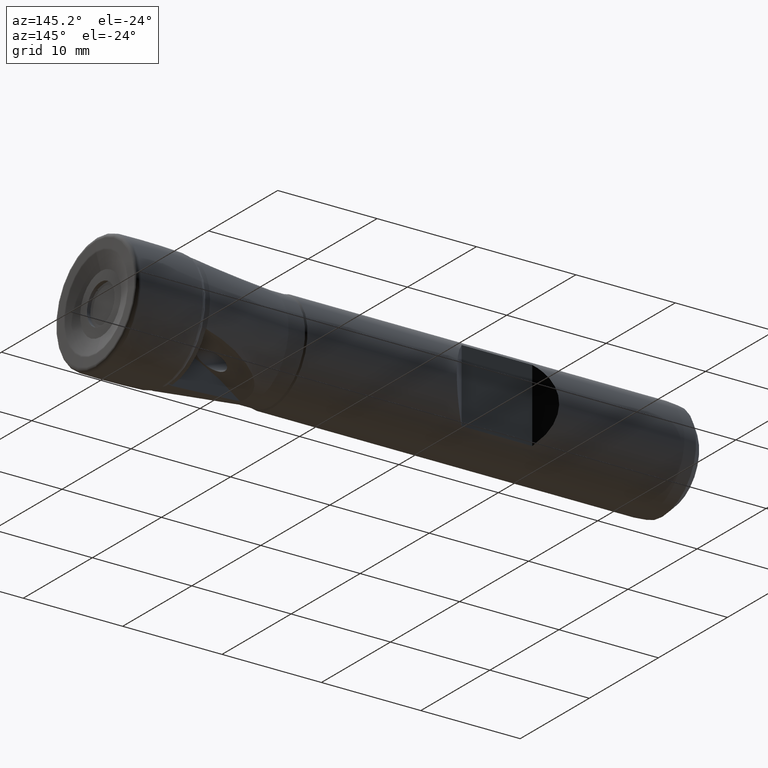
[diagram: clean part render]
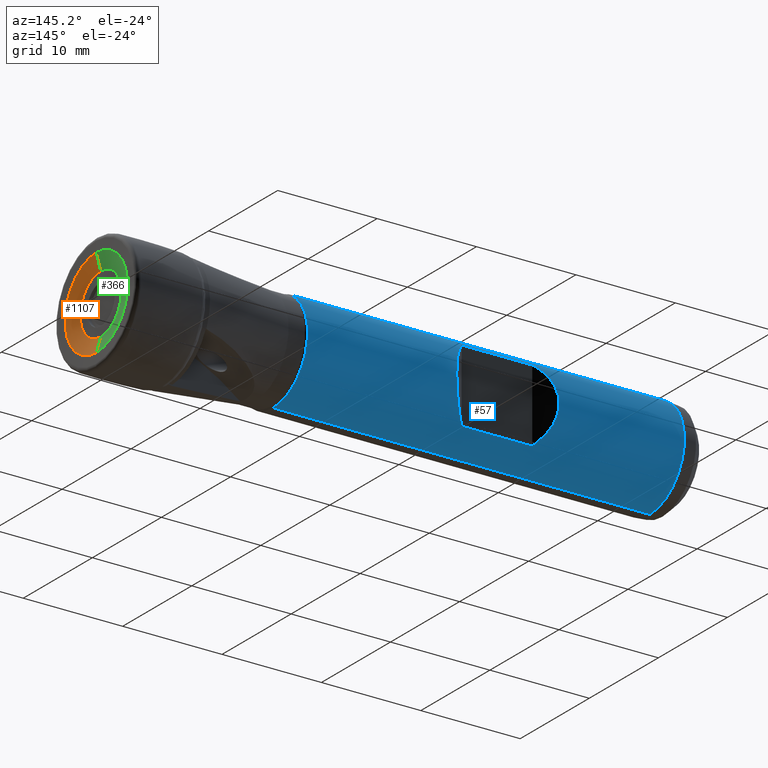
[diagram: same view with three faces highlighted in distinct colors, each labeled with its STEP entity id]
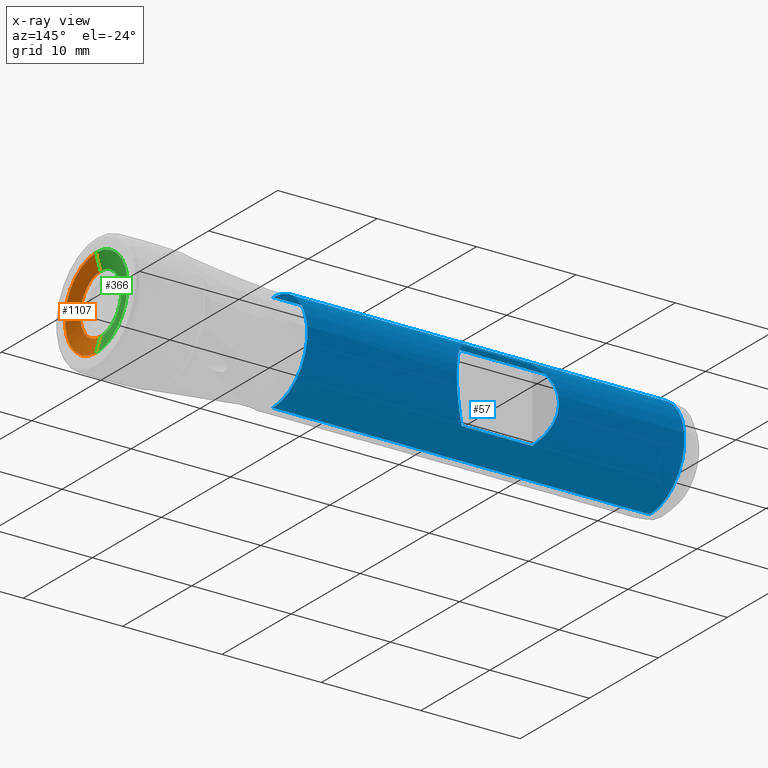
[diagram: x-ray of the same camera — body ghosted, the three highlighted faces saturated]
A machine part, auxiliary view with three faces highlighted in distinct colors.
The next image is the same camera in x-ray (body ghosted, the three faces saturated) — at least one of them is partly hidden behind the body in this view.
Their STEP definitions:

[orange] entity #1107 — the highlighted conical surface has half-angle 73.85 deg.
#157 = CARTESIAN_POINT ( 'NONE',  ( 0.4509237223386982600, 5.627732457500730900E-016, 4.529457081011830900 ) ) ;
#174 = CARTESIAN_POINT ( 'NONE',  ( 0.4509237223386982600, 0.0000000000000000000, -4.529457081011830900 ) ) ;
#389 = CIRCLE ( 'NONE', #421, 4.529457081011830900 ) ;
#413 = VECTOR ( 'NONE', #2830, 1000.000000000000200 ) ;
#418 = VECTOR ( 'NONE', #2834, 1000.000000000000200 ) ;
#421 = AXIS2_PLACEMENT_3D ( 'NONE', #2831, #2832, #2833 ) ;
#1107 = ADVANCED_FACE ( 'NONE', ( #2179 ), #1484, .F. ) ;
#1202 = EDGE_CURVE ( 'NONE', #2457, #2458, #2827, .T. ) ;
#1203 = EDGE_CURVE ( 'NONE', #2458, #2477, #389, .T. ) ;
#1204 = EDGE_CURVE ( 'NONE', #2436, #2477, #2828, .T. ) ;
#1228 = EDGE_CURVE ( 'NONE', #2457, #2436, #1792, .T. ) ;
#1247 = ORIENTED_EDGE ( 'NONE', *, *, #1228, .F. ) ;
#1306 = ORIENTED_EDGE ( 'NONE', *, *, #1204, .F. ) ;
#1307 = ORIENTED_EDGE ( 'NONE', *, *, #1203, .T. ) ;
#1314 = ORIENTED_EDGE ( 'NONE', *, *, #1202, .T. ) ;
#1438 = AXIS2_PLACEMENT_3D ( 'NONE', #2184, #2185, #2182 ) ;
#1484 = CONICAL_SURFACE ( 'NONE', #1438, 4.529457081011830900, 1.288927928314261000 ) ;
#1615 = EDGE_LOOP ( 'NONE', ( #1247, #1314, #1307, #1306 ) ) ;
#1645 = AXIS2_PLACEMENT_3D ( 'NONE', #2919, #2920, #2921 ) ;
#1792 = CIRCLE ( 'NONE', #1645, 2.972283386832371900 ) ;
#2179 = FACE_OUTER_BOUND ( 'NONE', #1615, .T. ) ;
#2182 = DIRECTION ( 'NONE',  ( 0.0000000000000000000, 0.0000000000000000000, -1.000000000000000000 ) ) ;
#2184 = CARTESIAN_POINT ( 'NONE',  ( 0.4509237223386982600, 0.0000000000000000000, 0.0000000000000000000 ) ) ;
#2185 = DIRECTION ( 'NONE',  ( 1.000000000000000000, -0.0000000000000000000, -0.0000000000000000000 ) ) ;
#2436 = VERTEX_POINT ( 'NONE', #3069 ) ;
#2457 = VERTEX_POINT ( 'NONE', #3078 ) ;
#2458 = VERTEX_POINT ( 'NONE', #157 ) ;
#2477 = VERTEX_POINT ( 'NONE', #174 ) ;
#2811 = CARTESIAN_POINT ( 'NONE',  ( 0.4509237223386982600, 0.0000000000000000000, -4.529457081011830900 ) ) ;
#2827 = LINE ( 'NONE', #2829, #413 ) ;
#2828 = LINE ( 'NONE', #2811, #418 ) ;
#2829 = CARTESIAN_POINT ( 'NONE',  ( 0.4509237223386982600, 5.546985116136451500E-016, 4.529457081011830900 ) ) ;
#2830 = DIRECTION ( 'NONE',  ( 0.2781507996735198600, 1.176319075220020500E-016, 0.9605374186573791800 ) ) ;
#2831 = CARTESIAN_POINT ( 'NONE',  ( 0.4509237223386982600, 0.0000000000000000000, 0.0000000000000000000 ) ) ;
#2832 = DIRECTION ( 'NONE',  ( 1.000000000000000000, -0.0000000000000000000, -0.0000000000000000000 ) ) ;
#2833 = DIRECTION ( 'NONE',  ( 0.0000000000000000000, 0.0000000000000000000, -1.000000000000000000 ) ) ;
#2834 = DIRECTION ( 'NONE',  ( 0.2781507996735198600, 0.0000000000000000000, -0.9605374186573791800 ) ) ;
#2919 = CARTESIAN_POINT ( 'NONE',  ( 4.607859233063393800E-015, 0.0000000000000000000, 0.0000000000000000000 ) ) ;
#2920 = DIRECTION ( 'NONE',  ( 1.000000000000000000, -0.0000000000000000000, -0.0000000000000000000 ) ) ;
#2921 = DIRECTION ( 'NONE',  ( 0.0000000000000000000, 0.0000000000000000000, -1.000000000000000000 ) ) ;
#3069 = CARTESIAN_POINT ( 'NONE',  ( 4.607859233063393800E-015, 0.0000000000000000000, -2.972283386832371900 ) ) ;
#3078 = CARTESIAN_POINT ( 'NONE',  ( 4.607859233063393800E-015, 4.593491225989785000E-016, 2.972283386832371900 ) ) ;

[blue] entity #57 — the highlighted cylindrical surface (partial cylindrical patch) has radius 5 mm, axis along (1, -0, -0).
#26 = VECTOR ( 'NONE', #2952, 1000.000000000000000 ) ;
#39 = VECTOR ( 'NONE', #2959, 1000.000000000000000 ) ;
#48 = AXIS2_PLACEMENT_3D ( 'NONE', #648, #651, #656 ) ;
#57 = ADVANCED_FACE ( 'NONE', ( #650, #645 ), #655, .T. ) ;
#123 = AXIS2_PLACEMENT_3D ( 'NONE', #2955, #2956, #2957 ) ;
#156 = CARTESIAN_POINT ( 'NONE',  ( -33.95000000000001000, 3.400000000000003000, -3.666060555964658600 ) ) ;
#427 = VECTOR ( 'NONE', #2945, 1000.000000000000000 ) ;
#645 = FACE_OUTER_BOUND ( 'NONE', #1241, .T. ) ;
#648 = CARTESIAN_POINT ( 'NONE',  ( 0.0000000000000000000, 0.0000000000000000000, 0.0000000000000000000 ) ) ;
#650 = FACE_BOUND ( 'NONE', #1611, .T. ) ;
#651 = DIRECTION ( 'NONE',  ( 1.000000000000000000, -0.0000000000000000000, -0.0000000000000000000 ) ) ;
#655 = CYLINDRICAL_SURFACE ( 'NONE', #48, 4.999999999999994700 ) ;
#656 = DIRECTION ( 'NONE',  ( 0.0000000000000000000, 0.0000000000000000000, -1.000000000000000000 ) ) ;
#1232 = EDGE_CURVE ( 'NONE', #2344, #2456, #1718, .T. ) ;
#1233 = EDGE_CURVE ( 'NONE', #2346, #2344, #2934, .T. ) ;
#1234 = EDGE_CURVE ( 'NONE', #2328, #2346, #1719, .T. ) ;
#1235 = EDGE_CURVE ( 'NONE', #2456, #2328, #2943, .T. ) ;
#1236 = EDGE_CURVE ( 'NONE', #2347, #2432, #1793, .T. ) ;
#1237 = EDGE_CURVE ( 'NONE', #2432, #2434, #2948, .T. ) ;
#1238 = EDGE_CURVE ( 'NONE', #2434, #2430, #1660, .T. ) ;
#1239 = EDGE_CURVE ( 'NONE', #2347, #2430, #2947, .T. ) ;
#1241 = EDGE_LOOP ( 'NONE', ( #1299, #1300, #1290, #1291 ) ) ;
#1250 = ORIENTED_EDGE ( 'NONE', *, *, #1234, .F. ) ;
#1254 = ORIENTED_EDGE ( 'NONE', *, *, #1232, .F. ) ;
#1255 = ORIENTED_EDGE ( 'NONE', *, *, #1233, .F. ) ;
#1290 = ORIENTED_EDGE ( 'NONE', *, *, #1238, .T. ) ;
#1291 = ORIENTED_EDGE ( 'NONE', *, *, #1239, .F. ) ;
#1299 = ORIENTED_EDGE ( 'NONE', *, *, #1236, .T. ) ;
#1300 = ORIENTED_EDGE ( 'NONE', *, *, #1237, .T. ) ;
#1301 = ORIENTED_EDGE ( 'NONE', *, *, #1235, .F. ) ;
#1401 = VECTOR ( 'NONE', #2939, 1000.000000000000000 ) ;
#1611 = EDGE_LOOP ( 'NONE', ( #1254, #1255, #1250, #1301 ) ) ;
#1655 = AXIS2_PLACEMENT_3D ( 'NONE', #2949, #2950, #2951 ) ;
#1660 = CIRCLE ( 'NONE', #123, 4.999999999999994700 ) ;
#1718 =( BOUNDED_CURVE ( )  B_SPLINE_CURVE ( 3, ( #2922, #2930, #2935, #2936 ),
 .UNSPECIFIED., .F., .T. ) 
 B_SPLINE_CURVE_WITH_KNOTS ( ( 4, 4 ),
 ( 5.460151615044611400, 7.106218999314560100 ),
 .UNSPECIFIED. ) 
 CURVE ( )  GEOMETRIC_REPRESENTATION_ITEM ( )  RATIONAL_B_SPLINE_CURVE ( ( 1.000000000000000000, 0.7866666666666675100, 0.7866666666666675100, 1.000000000000000000 ) ) 
 REPRESENTATION_ITEM ( '' )  );
#1719 =( BOUNDED_CURVE ( )  B_SPLINE_CURVE ( 3, ( #2938, #2933, #2941, #2942 ),
 .UNSPECIFIED., .F., .T. ) 
 B_SPLINE_CURVE_WITH_KNOTS ( ( 4, 4 ),
 ( 2.318558961454819700, 3.964626345724767900 ),
 .UNSPECIFIED. ) 
 CURVE ( )  GEOMETRIC_REPRESENTATION_ITEM ( )  RATIONAL_B_SPLINE_CURVE ( ( 1.000000000000000000, 0.7866666666666676200, 0.7866666666666676200, 1.000000000000000000 ) ) 
 REPRESENTATION_ITEM ( '' )  );
#1793 = CIRCLE ( 'NONE', #1655, 4.999999999999994700 ) ;
#2328 = VERTEX_POINT ( 'NONE', #2969 ) ;
#2344 = VERTEX_POINT ( 'NONE', #2977 ) ;
#2346 = VERTEX_POINT ( 'NONE', #2984 ) ;
#2347 = VERTEX_POINT ( 'NONE', #2978 ) ;
#2430 = VERTEX_POINT ( 'NONE', #3063 ) ;
#2432 = VERTEX_POINT ( 'NONE', #3065 ) ;
#2434 = VERTEX_POINT ( 'NONE', #3067 ) ;
#2456 = VERTEX_POINT ( 'NONE', #156 ) ;
#2922 = CARTESIAN_POINT ( 'NONE',  ( -33.95000000000001000, 3.400000000000003000, 3.666060555964665300 ) ) ;
#2930 = CARTESIAN_POINT ( 'NONE',  ( -31.67203389830511300, 5.677966101694906300, 1.553415489815537700 ) ) ;
#2933 = CARTESIAN_POINT ( 'NONE',  ( -43.32796610169489800, 5.677966101694905500, -1.553415489815529900 ) ) ;
#2934 = LINE ( 'NONE', #2937, #1401 ) ;
#2935 = CARTESIAN_POINT ( 'NONE',  ( -31.67203389830510600, 5.677966101694906300, -1.553415489815531700 ) ) ;
#2936 = CARTESIAN_POINT ( 'NONE',  ( -33.95000000000001000, 3.400000000000003000, -3.666060555964658600 ) ) ;
#2937 = CARTESIAN_POINT ( 'NONE',  ( 4.153563252338835300E-016, 3.399999999999998600, 3.666060555964666600 ) ) ;
#2938 = CARTESIAN_POINT ( 'NONE',  ( -41.05000000000000400, 3.400000000000003900, -3.666060555964661700 ) ) ;
#2939 = DIRECTION ( 'NONE',  ( 1.000000000000000000, -0.0000000000000000000, -0.0000000000000000000 ) ) ;
#2940 = CARTESIAN_POINT ( 'NONE',  ( 0.0000000000000000000, 6.123233995736760400E-016, 4.999999999999994700 ) ) ;
#2941 = CARTESIAN_POINT ( 'NONE',  ( -43.32796610169489800, 5.677966101694905500, 1.553415489815536100 ) ) ;
#2942 = CARTESIAN_POINT ( 'NONE',  ( -41.05000000000000400, 3.399999999999998600, 3.666060555964666600 ) ) ;
#2943 = LINE ( 'NONE', #2944, #427 ) ;
#2944 = CARTESIAN_POINT ( 'NONE',  ( 4.153563252338835300E-016, 3.399999999999998600, -3.666060555964666600 ) ) ;
#2945 = DIRECTION ( 'NONE',  ( -1.000000000000000000, 0.0000000000000000000, 0.0000000000000000000 ) ) ;
#2946 = CARTESIAN_POINT ( 'NONE',  ( 0.0000000000000000000, 0.0000000000000000000, -4.999999999999994700 ) ) ;
#2947 = LINE ( 'NONE', #2946, #39 ) ;
#2948 = LINE ( 'NONE', #2940, #26 ) ;
#2949 = CARTESIAN_POINT ( 'NONE',  ( -55.24999999999996400, 0.0000000000000000000, 0.0000000000000000000 ) ) ;
#2950 = DIRECTION ( 'NONE',  ( 1.000000000000000000, -0.0000000000000000000, -0.0000000000000000000 ) ) ;
#2951 = DIRECTION ( 'NONE',  ( 0.0000000000000000000, 0.0000000000000000000, -1.000000000000000000 ) ) ;
#2952 = DIRECTION ( 'NONE',  ( 1.000000000000000000, -0.0000000000000000000, -0.0000000000000000000 ) ) ;
#2955 = CARTESIAN_POINT ( 'NONE',  ( -17.32679491924311000, 0.0000000000000000000, 0.0000000000000000000 ) ) ;
#2956 = DIRECTION ( 'NONE',  ( -1.000000000000000000, 0.0000000000000000000, 0.0000000000000000000 ) ) ;
#2957 = DIRECTION ( 'NONE',  ( 0.0000000000000000000, 0.0000000000000000000, 1.000000000000000000 ) ) ;
#2959 = DIRECTION ( 'NONE',  ( 1.000000000000000000, -0.0000000000000000000, -0.0000000000000000000 ) ) ;
#2969 = CARTESIAN_POINT ( 'NONE',  ( -41.05000000000000400, 3.400000000000003900, -3.666060555964661700 ) ) ;
#2977 = CARTESIAN_POINT ( 'NONE',  ( -33.95000000000001000, 3.400000000000003000, 3.666060555964665300 ) ) ;
#2978 = CARTESIAN_POINT ( 'NONE',  ( -55.24999999999996400, 0.0000000000000000000, -4.999999999999994700 ) ) ;
#2984 = CARTESIAN_POINT ( 'NONE',  ( -41.05000000000000400, 3.399999999999998600, 3.666060555964666600 ) ) ;
#3063 = CARTESIAN_POINT ( 'NONE',  ( -17.32679491924311000, 6.123233995736760400E-016, -4.999999999999994700 ) ) ;
#3065 = CARTESIAN_POINT ( 'NONE',  ( -55.24999999999996400, 6.123233995736760400E-016, 4.999999999999994700 ) ) ;
#3067 = CARTESIAN_POINT ( 'NONE',  ( -17.32679491924311000, 0.0000000000000000000, 4.999999999999994700 ) ) ;

[green] entity #366 — the highlighted conical surface has half-angle 73.85 deg.
#157 = CARTESIAN_POINT ( 'NONE',  ( 0.4509237223386982600, 5.627732457500730900E-016, 4.529457081011830900 ) ) ;
#174 = CARTESIAN_POINT ( 'NONE',  ( 0.4509237223386982600, 0.0000000000000000000, -4.529457081011830900 ) ) ;
#366 = ADVANCED_FACE ( 'NONE', ( #907 ), #1426, .F. ) ;
#413 = VECTOR ( 'NONE', #2830, 1000.000000000000200 ) ;
#418 = VECTOR ( 'NONE', #2834, 1000.000000000000200 ) ;
#450 = EDGE_CURVE ( 'NONE', #2436, #2457, #1515, .T. ) ;
#463 = EDGE_LOOP ( 'NONE', ( #1605, #1604, #1556, #1549 ) ) ;
#907 = FACE_OUTER_BOUND ( 'NONE', #463, .T. ) ;
#910 = DIRECTION ( 'NONE',  ( 0.0000000000000000000, 0.0000000000000000000, -1.000000000000000000 ) ) ;
#912 = CARTESIAN_POINT ( 'NONE',  ( 0.4509237223386982600, 0.0000000000000000000, 0.0000000000000000000 ) ) ;
#913 = DIRECTION ( 'NONE',  ( 1.000000000000000000, -0.0000000000000000000, -0.0000000000000000000 ) ) ;
#1202 = EDGE_CURVE ( 'NONE', #2457, #2458, #2827, .T. ) ;
#1204 = EDGE_CURVE ( 'NONE', #2436, #2477, #2828, .T. ) ;
#1207 = EDGE_CURVE ( 'NONE', #2477, #2458, #1653, .T. ) ;
#1324 = AXIS2_PLACEMENT_3D ( 'NONE', #1811, #1812, #1813 ) ;
#1387 = AXIS2_PLACEMENT_3D ( 'NONE', #912, #913, #910 ) ;
#1426 = CONICAL_SURFACE ( 'NONE', #1387, 4.529457081011830900, 1.288927928314261000 ) ;
#1515 = CIRCLE ( 'NONE', #1324, 2.972283386832371900 ) ;
#1549 = ORIENTED_EDGE ( 'NONE', *, *, #1207, .T. ) ;
#1556 = ORIENTED_EDGE ( 'NONE', *, *, #1204, .T. ) ;
#1604 = ORIENTED_EDGE ( 'NONE', *, *, #450, .F. ) ;
#1605 = ORIENTED_EDGE ( 'NONE', *, *, #1202, .F. ) ;
#1646 = AXIS2_PLACEMENT_3D ( 'NONE', #2843, #2844, #2845 ) ;
#1653 = CIRCLE ( 'NONE', #1646, 4.529457081011830900 ) ;
#1811 = CARTESIAN_POINT ( 'NONE',  ( 4.607859233063393800E-015, 0.0000000000000000000, 0.0000000000000000000 ) ) ;
#1812 = DIRECTION ( 'NONE',  ( 1.000000000000000000, -0.0000000000000000000, -0.0000000000000000000 ) ) ;
#1813 = DIRECTION ( 'NONE',  ( 0.0000000000000000000, 0.0000000000000000000, -1.000000000000000000 ) ) ;
#2436 = VERTEX_POINT ( 'NONE', #3069 ) ;
#2457 = VERTEX_POINT ( 'NONE', #3078 ) ;
#2458 = VERTEX_POINT ( 'NONE', #157 ) ;
#2477 = VERTEX_POINT ( 'NONE', #174 ) ;
#2811 = CARTESIAN_POINT ( 'NONE',  ( 0.4509237223386982600, 0.0000000000000000000, -4.529457081011830900 ) ) ;
#2827 = LINE ( 'NONE', #2829, #413 ) ;
#2828 = LINE ( 'NONE', #2811, #418 ) ;
#2829 = CARTESIAN_POINT ( 'NONE',  ( 0.4509237223386982600, 5.546985116136451500E-016, 4.529457081011830900 ) ) ;
#2830 = DIRECTION ( 'NONE',  ( 0.2781507996735198600, 1.176319075220020500E-016, 0.9605374186573791800 ) ) ;
#2834 = DIRECTION ( 'NONE',  ( 0.2781507996735198600, 0.0000000000000000000, -0.9605374186573791800 ) ) ;
#2843 = CARTESIAN_POINT ( 'NONE',  ( 0.4509237223386982600, 0.0000000000000000000, 0.0000000000000000000 ) ) ;
#2844 = DIRECTION ( 'NONE',  ( 1.000000000000000000, -0.0000000000000000000, -0.0000000000000000000 ) ) ;
#2845 = DIRECTION ( 'NONE',  ( 0.0000000000000000000, 0.0000000000000000000, -1.000000000000000000 ) ) ;
#3069 = CARTESIAN_POINT ( 'NONE',  ( 4.607859233063393800E-015, 0.0000000000000000000, -2.972283386832371900 ) ) ;
#3078 = CARTESIAN_POINT ( 'NONE',  ( 4.607859233063393800E-015, 4.593491225989785000E-016, 2.972283386832371900 ) ) ;